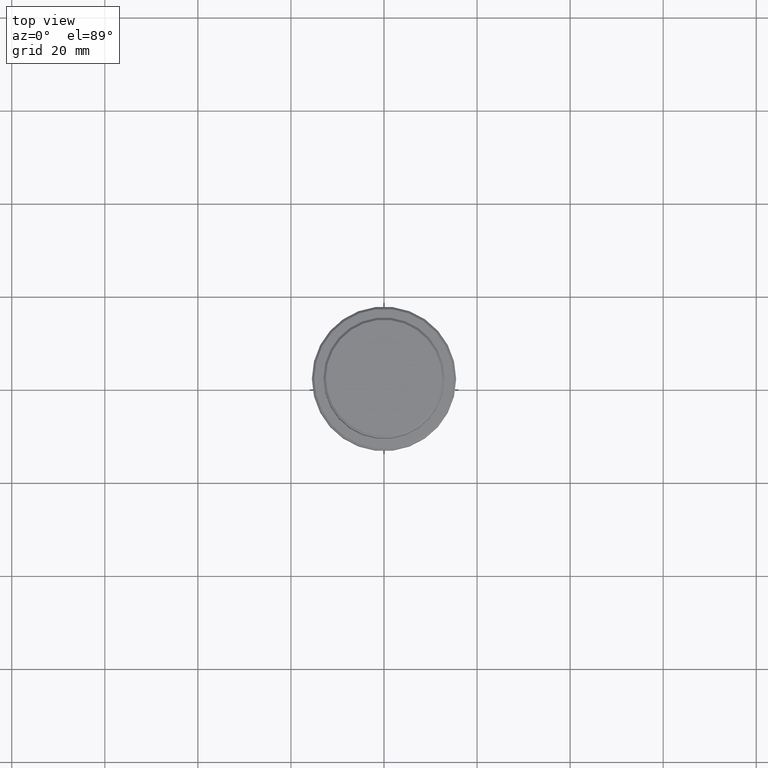
[diagram: clean part render]
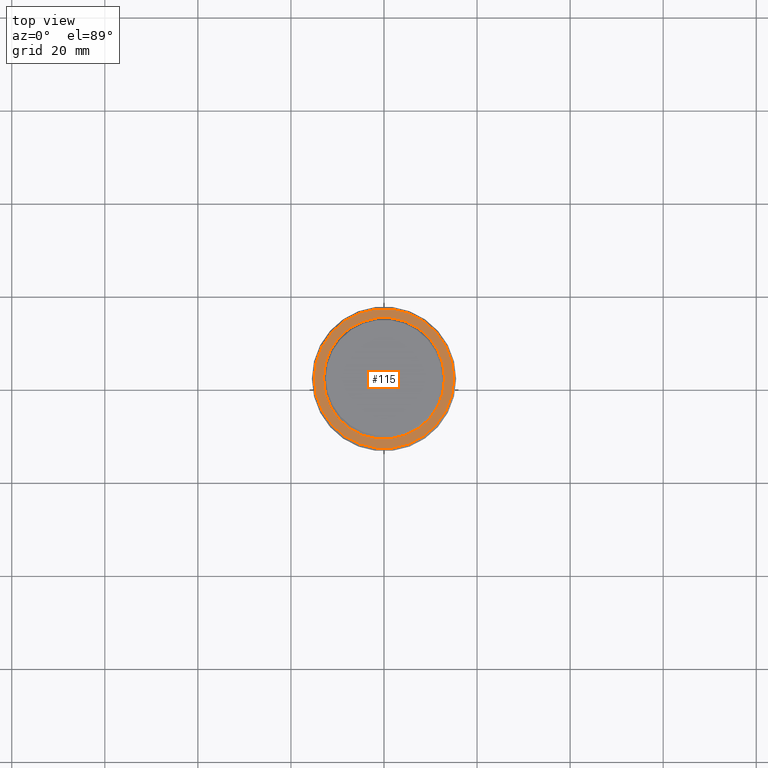
[diagram: same view with one face highlighted and labeled with its STEP entity id]
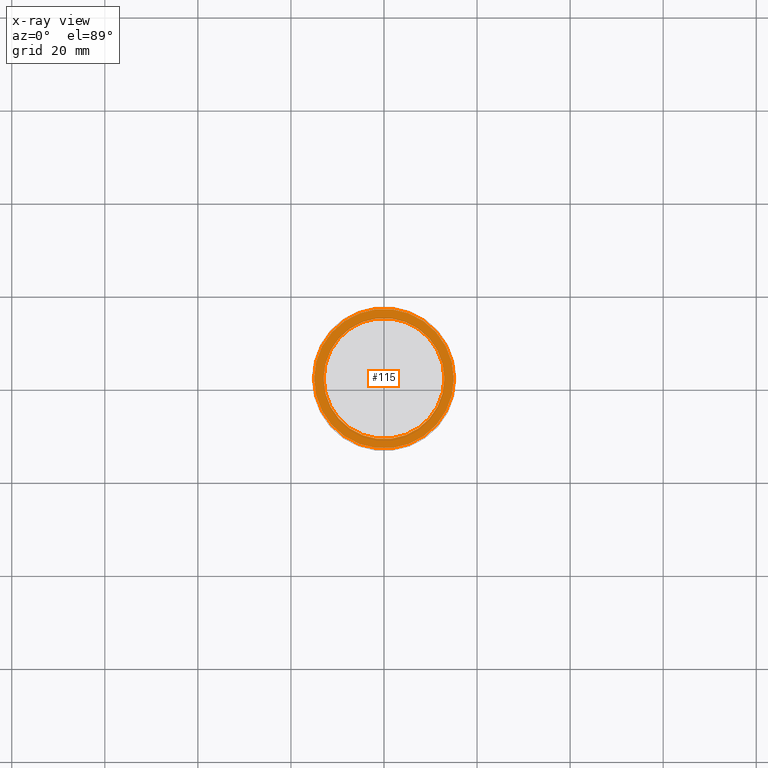
[diagram: x-ray of the same camera — body ghosted, the highlighted face saturated]
A machine part, top view. The second image highlights one B-rep face of the part: STEP entity #115.
The next image is the same camera in x-ray: the body ghosted, the highlighted face saturated — about 0% of this face is hidden behind the body in this view.
In plain terms, the highlighted planar face has unit normal (0, -0, 1).
Its self-contained STEP definition (entity closure, byte-faithful):
#15 = AXIS2_PLACEMENT_3D ( 'NONE', #682, #1116, #135 ) ;
#17 = VERTEX_POINT ( 'NONE', #510 ) ;
#20 = CARTESIAN_POINT ( 'NONE',  ( 12.99999999999999467, 0.000000000000000000, -8.999999999999987566 ) ) ;
#35 = DIRECTION ( 'NONE',  ( 1.000000000000000000, 0.000000000000000000, 0.000000000000000000 ) ) ;
#42 = DIRECTION ( 'NONE',  ( 1.000000000000000000, 0.000000000000000000, 0.000000000000000000 ) ) ;
#108 = ORIENTED_EDGE ( 'NONE', *, *, #560, .T. ) ;
#115 = ADVANCED_FACE ( 'NONE', ( #1117, #1332 ), #1349, .T. ) ;
#135 = DIRECTION ( 'NONE',  ( 1.000000000000000000, 0.000000000000000000, 0.000000000000000000 ) ) ;
#136 = DIRECTION ( 'NONE',  ( 0.000000000000000000, -0.000000000000000000, 1.000000000000000000 ) ) ;
#186 = AXIS2_PLACEMENT_3D ( 'NONE', #1287, #304, #749 ) ;
#304 = DIRECTION ( 'NONE',  ( 0.000000000000000000, 0.000000000000000000, -1.000000000000000000 ) ) ;
#318 = CIRCLE ( 'NONE', #15, 15.00000000000001421 ) ;
#329 = CARTESIAN_POINT ( 'NONE',  ( 15.00000000000001421, 1.867586368699714559E-15, -8.999999999999987566 ) ) ;
#427 = AXIS2_PLACEMENT_3D ( 'NONE', #1130, #1019, #35 ) ;
#442 = AXIS2_PLACEMENT_3D ( 'NONE', #1029, #136, #42 ) ;
#448 = DIRECTION ( 'NONE',  ( 1.000000000000000000, 0.000000000000000000, 0.000000000000000000 ) ) ;
#484 = EDGE_LOOP ( 'NONE', ( #695, #1238 ) ) ;
#491 = VERTEX_POINT ( 'NONE', #882 ) ;
#510 = CARTESIAN_POINT ( 'NONE',  ( -15.00000000000001421, 0.000000000000000000, -8.999999999999987566 ) ) ;
#558 = EDGE_LOOP ( 'NONE', ( #108, #653 ) ) ;
#560 = EDGE_CURVE ( 'NONE', #930, #491, #1049, .T. ) ;
#620 = CIRCLE ( 'NONE', #186, 12.99999999999999467 ) ;
#653 = ORIENTED_EDGE ( 'NONE', *, *, #926, .T. ) ;
#682 = CARTESIAN_POINT ( 'NONE',  ( 0.000000000000000000, 0.000000000000000000, -8.999999999999987566 ) ) ;
#695 = ORIENTED_EDGE ( 'NONE', *, *, #1279, .T. ) ;
#749 = DIRECTION ( 'NONE',  ( 1.000000000000000000, 0.000000000000000000, 0.000000000000000000 ) ) ;
#785 = CARTESIAN_POINT ( 'NONE',  ( 0.000000000000000000, 0.000000000000000000, -8.999999999999987566 ) ) ;
#793 = AXIS2_PLACEMENT_3D ( 'NONE', #785, #1218, #448 ) ;
#826 = CIRCLE ( 'NONE', #793, 15.00000000000001421 ) ;
#882 = CARTESIAN_POINT ( 'NONE',  ( -12.99999999999999467, 1.592040838891558504E-15, -8.999999999999987566 ) ) ;
#926 = EDGE_CURVE ( 'NONE', #491, #930, #620, .T. ) ;
#930 = VERTEX_POINT ( 'NONE', #20 ) ;
#1019 = DIRECTION ( 'NONE',  ( 0.000000000000000000, 0.000000000000000000, -1.000000000000000000 ) ) ;
#1029 = CARTESIAN_POINT ( 'NONE',  ( 0.000000000000000000, 12.49999999999999289, -8.999999999999987566 ) ) ;
#1030 = VERTEX_POINT ( 'NONE', #329 ) ;
#1049 = CIRCLE ( 'NONE', #427, 12.99999999999999467 ) ;
#1116 = DIRECTION ( 'NONE',  ( -0.000000000000000000, -0.000000000000000000, 1.000000000000000000 ) ) ;
#1117 = FACE_OUTER_BOUND ( 'NONE', #484, .T. ) ;
#1130 = CARTESIAN_POINT ( 'NONE',  ( 0.000000000000000000, 0.000000000000000000, -8.999999999999987566 ) ) ;
#1218 = DIRECTION ( 'NONE',  ( -0.000000000000000000, -0.000000000000000000, 1.000000000000000000 ) ) ;
#1238 = ORIENTED_EDGE ( 'NONE', *, *, #1241, .T. ) ;
#1241 = EDGE_CURVE ( 'NONE', #1030, #17, #826, .T. ) ;
#1279 = EDGE_CURVE ( 'NONE', #17, #1030, #318, .T. ) ;
#1287 = CARTESIAN_POINT ( 'NONE',  ( 0.000000000000000000, 0.000000000000000000, -8.999999999999987566 ) ) ;
#1332 = FACE_BOUND ( 'NONE', #558, .T. ) ;
#1349 = PLANE ( 'NONE',  #442 ) ;